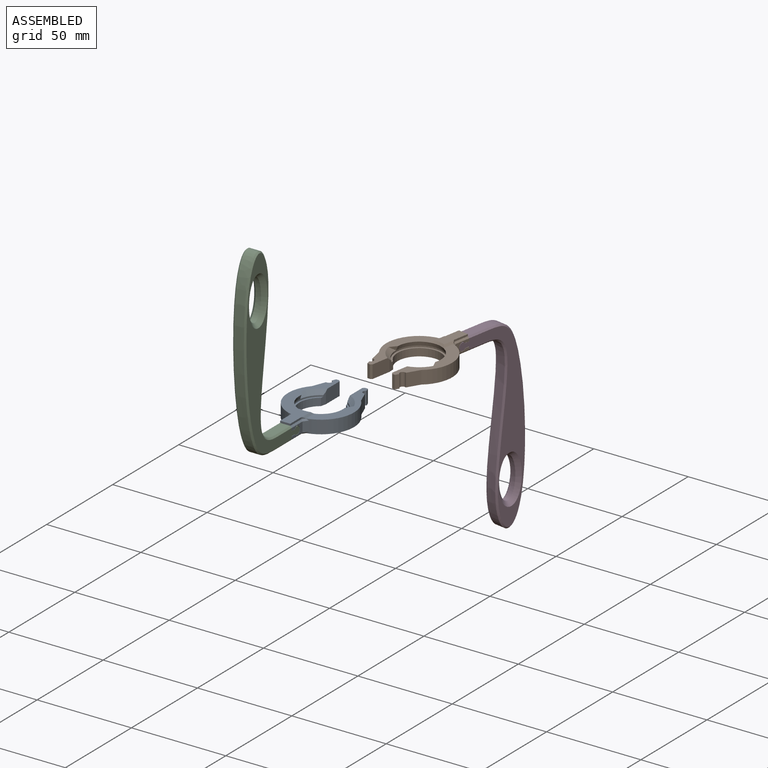
[diagram: assembled view]
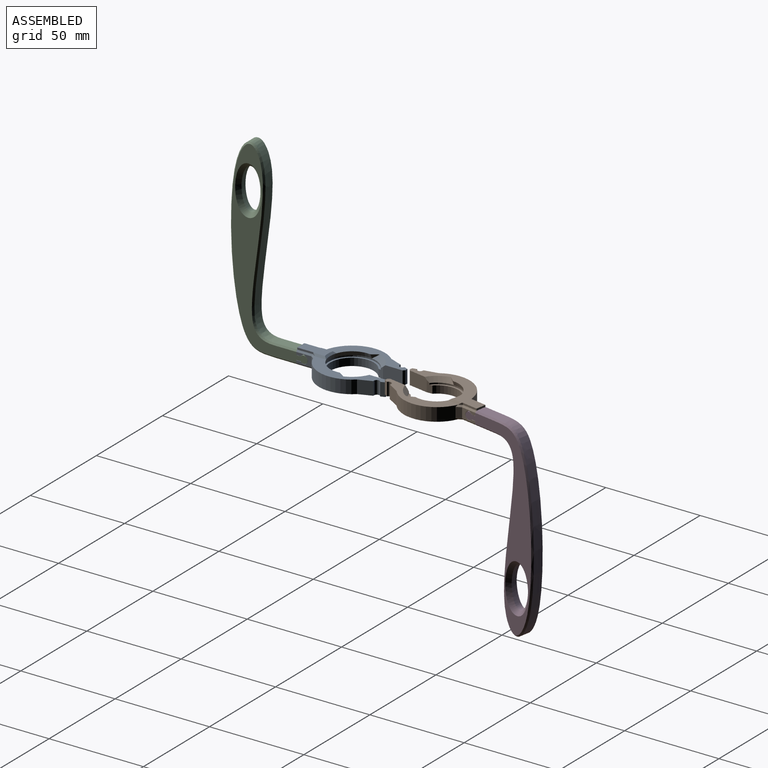
[diagram: assembled view, second angle]
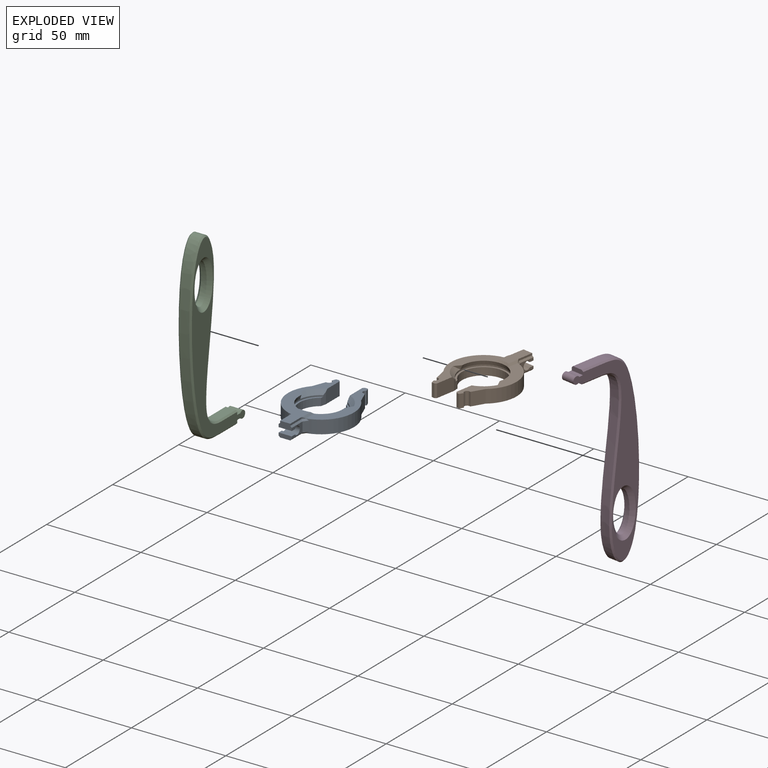
[diagram: exploded view]
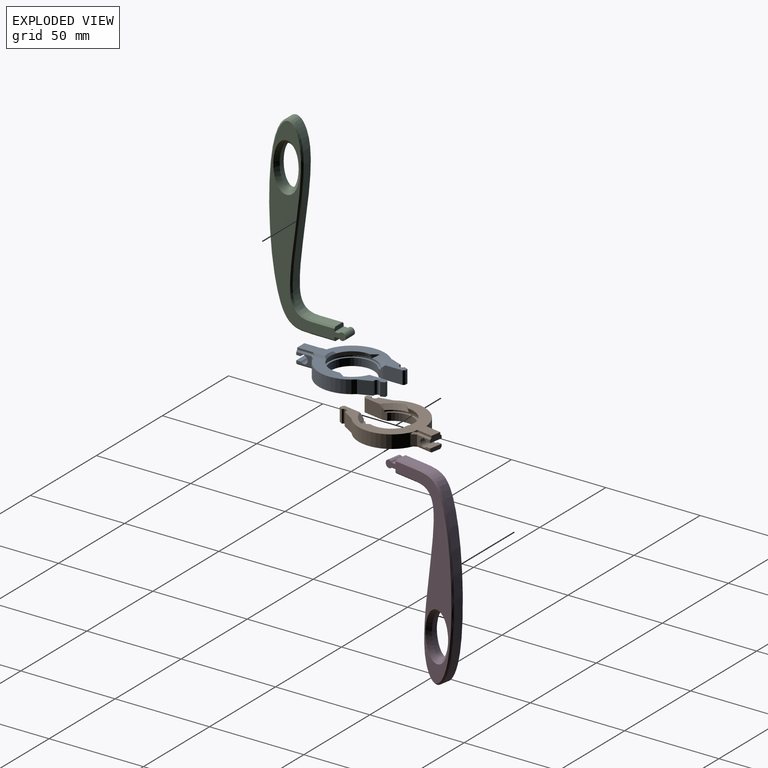
[diagram: exploded view, second angle]
ASSEMBLY  parts=4 mates=2
PART A: 56 faces, bbox 35.8x51.4x9.1 mm
  f0: plane 41.3x14.35mm, normal (0,0,1), area 206.7mm2, adj f8,f24,f25,f26,f27,f28,f30,f41
  f1: cylinder r=12.5mm len=25mm, axis (0,0,-1), area 52.2mm2, adj f6,f7,f30,f42,f43,f46,f47
  f2: plane 10.47x7.02mm, normal (-1,0,0), area 72.5mm2, adj f3,f4,f42,f45,f46
  f3: plane 41.3x14.35mm, normal (0,0,1), area 206.7mm2, adj f2,f7,f10,f11,f12,f13,f14,f40
  f4: plane 50.59x35mm, normal (0,0,-1), area 588.7mm2, adj f2,f5,f8,f10,f11,f12,f13,f14
  f5: cylinder r=11.5mm len=23mm, axis (0,0,-1), area 232.3mm2, adj f4,f6,f46,f47
  f6: plane 25x23.28mm, normal (0,0,1), area 61.7mm2, adj f1,f5,f46,f47
  f7: bspline ~14.75x12.96mm, area 49.6mm2, adj f1,f3,f30,f40,f54
  f8: plane 10.47x7.02mm, normal (1,0,0), area 72.5mm2, adj f0,f4,f43,f44,f47
  f9: plane 7x3.25mm, normal (0,-1,0), area 20.5mm2, adj f16,f17,f29,f34,f38,f49,f50,f52
  f10: cylinder r=17.5mm len=28.76mm, axis (0,0,-1), area 246.2mm2, adj f3,f4,f11,f23,f33,f35
  f11: plane 7x6.83mm, normal (0.93,0.37,0), area 51.3mm2, adj f3,f4,f10,f12
  f12: cylinder r=1.5mm len=7mm, axis (0,0,-1), area 33mm2, adj f3,f4,f11,f13
  f13: plane 7x2.1mm, normal (0.93,0.37,0), area 15.8mm2, adj f3,f4,f12,f14
  f14: plane 7x1.6mm, normal (0,1,0), area 11.2mm2, adj f3,f4,f13,f45
  f15: plane 7x2.15mm, normal (0,-1,0), area 14.4mm2, adj f4,f16,f18,f29,f32,f36
  f16: plane 8.1x5.4mm, normal (1,0,0), area 24.3mm2, adj f9,f15,f17,f18,f19,f20,f21,f22
  f17: plane 7x2.31mm, normal (0,0,-1), area 16.2mm2, adj f9,f16,f19,f29
  f18: plane 7x2.39mm, normal (0,0,1), area 16.7mm2, adj f15,f16,f20,f29
  f19: cylinder r=2.1mm len=7mm, axis (1,0,0), area 8.7mm2, adj f16,f17,f22,f29
  f20: cylinder r=2.1mm len=7mm, axis (1,0,0), area 54mm2, adj f16,f18,f21,f29
  f21: plane 7x0.7mm, normal (0,-0.6,-0.8), area 6.1mm2, adj f16,f20,f22,f29
  f22: plane 7x0.7mm, normal (0,0.6,-0.8), area 6.1mm2, adj f16,f19,f21,f29
  f23: plane 5.4x2.34mm, normal (0.81,-0.59,0), area 15.7mm2, adj f10,f16,f33,f35
  f24: cylinder r=17.5mm len=28.76mm, axis (0,0,-1), area 246.2mm2, adj f0,f4,f25,f31,f37,f39
  f25: plane 7x6.83mm, normal (-0.93,0.37,0), area 51.3mm2, adj f0,f4,f24,f26
  f26: cylinder r=1.5mm len=7mm, axis (0,0,-1), area 33mm2, adj f0,f4,f25,f27
  f27: plane 7x2.1mm, normal (-0.93,0.37,0), area 15.8mm2, adj f0,f4,f26,f28
  f28: plane 7x1.6mm, normal (0,1,0), area 11.2mm2, adj f0,f4,f27,f44
  f29: plane 8.1x5.4mm, normal (-1,0,0), area 24.3mm2, adj f9,f15,f17,f18,f19,f20,f21,f22
  f30: bspline ~14.75x12.96mm, area 48.4mm2, adj f0,f1,f7,f41,f54
  f31: plane 5.4x2.34mm, normal (-0.81,-0.59,0), area 15.7mm2, adj f24,f29,f37,f39
  f32: plane 8.37x0.8mm, normal (0.71,0,-0.71), area 9.3mm2, adj f4,f15,f16,f33
  f33: plane 2.54x2.36mm, normal (0.57,-0.42,-0.71), area 2.8mm2, adj f4,f10,f23,f32
  f34: plane 8.37x0.8mm, normal (0.71,0,0.71), area 9.3mm2, adj f9,f16,f35,f50
  f35: plane 2.54x2.36mm, normal (0.57,-0.42,0.71), area 2.8mm2, adj f10,f23,f34,f51
  f36: plane 8.37x0.8mm, normal (-0.71,0,-0.71), area 9.3mm2, adj f4,f15,f29,f37
  f37: plane 2.54x2.36mm, normal (-0.57,-0.42,-0.71), area 2.8mm2, adj f4,f24,f31,f36
  f38: plane 8.37x0.8mm, normal (-0.71,0,0.71), area 9.3mm2, adj f9,f29,f39,f49
  f39: plane 2.54x2.36mm, normal (-0.57,-0.42,0.71), area 2.8mm2, adj f24,f31,f38,f48
  f40: bspline ~3.74x3.68mm, area 4.7mm2, adj f3,f7,f42
  f41: bspline ~3.71x3.67mm, area 4.7mm2, adj f0,f30,f43
  f42: cone r=14.7mm half-angle=45deg, axis (0,0,1), area 35.9mm2, adj f1,f2,f3,f40,f46
  f43: cone r=14.7mm half-angle=45deg, axis (0,0,1), area 35.9mm2, adj f0,f1,f8,f41,f47
  f44: plane 7x0.8mm, normal (0.71,0.71,0), area 7.9mm2, adj f0,f4,f8,f28
  f45: plane 7x0.8mm, normal (-0.71,0.71,0), area 7.9mm2, adj f2,f3,f4,f14
  f46: plane 5.93x2.85mm, normal (-0.97,-0.22,0), area 13.4mm2, adj f1,f2,f4,f5,f6,f42
  f47: plane 5.93x2.85mm, normal (0.97,-0.22,0), area 13.4mm2, adj f1,f4,f5,f6,f8,f43
  f48: plane 1.74x1.28mm, normal (-0.81,-0.59,0), area 1.3mm2, adj f39,f49,f52,f55
  f49: plane 8.37x1mm, normal (-1,0,0), area 8.4mm2, adj f9,f38,f48,f52
  f50: plane 8.37x1mm, normal (1,0,0), area 8.4mm2, adj f9,f34,f51,f52
  f51: plane 1.74x1.28mm, normal (0.81,-0.59,0), area 1.3mm2, adj f35,f50,f52,f53
  f52: plane 14.87x5.95mm, normal (0,0,1), area 82.4mm2, adj f9,f48,f49,f50,f51,f53,f54,f55
  f53: plane 7.52x1.05mm, normal (0.71,0,0.71), area 8.6mm2, adj f3,f51,f52,f54
  f54: cone r=12.63mm half-angle=45deg, axis (0,0,1), area 10mm2, adj f7,f30,f52,f53,f55
  f55: plane 7.52x1.05mm, normal (-0.71,0,0.71), area 8.6mm2, adj f0,f48,f52,f54
PART B: same geometry as A
PART C: 19 faces, bbox 41.4x100.4x7.3 mm
  f0: cylinder r=2mm len=7mm, axis (0,0,-1), area 69.9mm2, adj f1,f7,f9,f10
  f1: plane 7x2.4mm, normal (0,1,0), area 16.8mm2, adj f0,f2,f9,f10
  f2: plane 7x2.3mm, normal (1,0,0), area 15.5mm2, adj f1,f3,f9,f10,f11,f14
  f3: plane 12x5.4mm, normal (0,1,0), area 64.8mm2, adj f2,f4,f11,f14
  f4: extruded ~99.95x23.1mm, area 1180.1mm2, adj f3,f5,f12,f15
  f5: plane 12x5.4mm, normal (0,-1,0), area 64.8mm2, adj f4,f6,f13,f16
  f6: plane 7x2.3mm, normal (1,0,0), area 15.5mm2, adj f5,f7,f9,f10,f13,f16
  f7: plane 7x2.4mm, normal (0,-1,0), area 16.8mm2, adj f0,f6,f9,f10
  f8: extruded ~22.03x10.04mm, area 156.5mm2, adj f17,f18
  f9: plane 99.18x40.67mm, normal (0,0,1), area 945mm2, adj f0,f1,f2,f6,f7,f14,f15,f16
  f10: plane 99.17x40.68mm, normal (0,0,-1), area 941.5mm2, adj f0,f1,f2,f6,f7,f11,f12,f13
  f11: plane 12x0.8mm, normal (0,0.71,-0.71), area 13.6mm2, adj f2,f3,f10,f12
  f12: bspline ~100.04x23.18mm, area 245.5mm2, adj f4,f10,f11,f13
  f13: plane 12x0.8mm, normal (0,-0.71,-0.71), area 13.6mm2, adj f5,f6,f10,f12
  f14: plane 12x0.8mm, normal (0,0.71,0.71), area 13.6mm2, adj f2,f3,f9,f15
  f15: bspline ~100.11x23.17mm, area 244.2mm2, adj f4,f9,f14,f16
  f16: plane 12x0.8mm, normal (0,-0.71,0.71), area 13.6mm2, adj f5,f6,f9,f15
  f17: bspline ~26.03x14.04mm, area 165.3mm2, adj f8,f10
  f18: bspline ~26.03x14.04mm, area 165.3mm2, adj f8,f9
PART D: same geometry as C
PLACE A t=(-15.71,-5.43,-0.81)mm fixed
PLACE B rot(axis=(0,0,1),170deg) t=(-1.91,49.16,5.86)mm
PLACE C rot(axis=(0.58,0.58,0.58),120deg) t=(-19.21,-32.57,-0.81)mm
PLACE D rot(axis=(-0.51,0.61,-0.61),125.9deg) t=(-0.64,76.5,12.86)mm
MATE fastened D.f0 <-> B.f19  axis (-0.98,0.17,0) through (-1.33,72.56,9.36)mm
MATE slider C.f0 <-> A.f19  axis (1,0,0) through (-12.21,-28.57,2.69)mm
